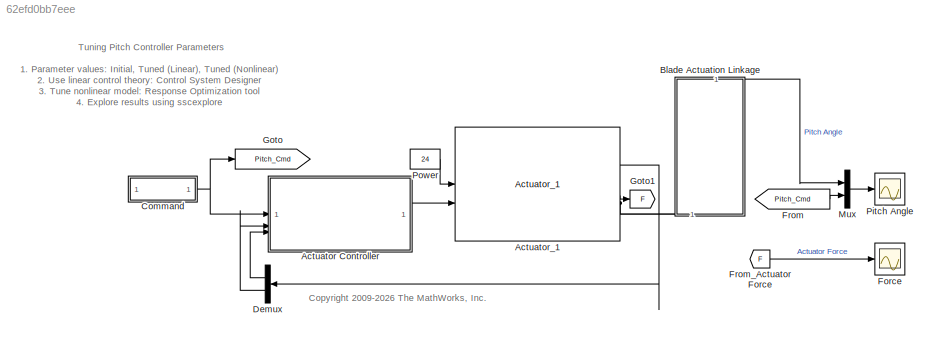
MODEL slx_62efd0bb7eee
KIND model
CONFIG EnableMultiTasking = on
CONFIG PostLoadFcn = %open_system([bdroot '/Start Values']);\nPitch_Control_Hydraulic_Testrig_setparam('Initial');\nwarning off Control:analysis:ScalingIssue\nwarning off Control:transformation:StateSpaceScaling\nwarning('off','MATLAB:HandleGraphics:ObsoletedProperty:JavaFrame')\nwarning('off','physmod:common:gl:sli:rtp:InvalidNonValueReference');
CONFIG SolverName = ode15s
CONFIG StopTime = 5.5
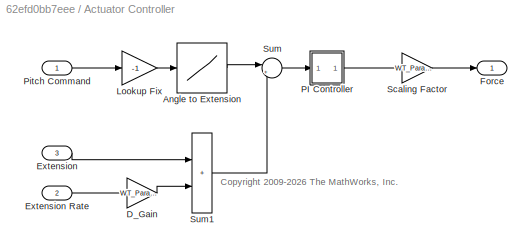
BLOCK [SubSystem] Actuator Controller
  AncestorBlock = Pitch_Controller_Lib/Inner Loop/Actuator Controller
  LibrarySourceBlock = Pitch_Controller_Lib/Inner Loop/Actuator Controller
BLOCK [Lookup] Actuator Controller/Angle to Extension
  InputValues = -Actuator_Lookup.angle
  SaturateOnIntegerOverflow = off
  Table = Actuator_Lookup.extension
BLOCK [Gain] Actuator Controller/D_Gain
  Gain = WT_Params.Pitch_Controller.D_Gain
BLOCK [Inport] Actuator Controller/Extension
  Port = 3
BLOCK [Inport] Actuator Controller/Extension Rate
  Port = 2
BLOCK [Outport] Actuator Controller/Force
  VectorParamsAs1DForOutWhenUnconnected = off
BLOCK [Gain] Actuator Controller/Lookup Fix
  Gain = -1
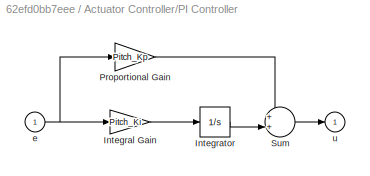
BLOCK [SubSystem] Actuator Controller/PI Controller
BLOCK [Gain] Actuator Controller/PI Controller/Integral Gain
  Gain = Pitch_Ki
  OutDataTypeStr = Inherit: Same as input
  ParamDataTypeStr = Inherit: Same as input
  SaturateOnIntegerOverflow = on
BLOCK [Integrator] Actuator Controller/PI Controller/Integrator
BLOCK [Gain] Actuator Controller/PI Controller/Proportional Gain
  Gain = Pitch_Kp
  OutDataTypeStr = Inherit: Same as input
  ParamDataTypeStr = Inherit: Same as input
  SaturateOnIntegerOverflow = on
BLOCK [Sum] Actuator Controller/PI Controller/Sum
  InputSameDT = on
  Inputs = ++|
  OutDataTypeStr = Inherit: Same as first input
  SaturateOnIntegerOverflow = on
BLOCK [Inport] Actuator Controller/PI Controller/e
BLOCK [Outport] Actuator Controller/PI Controller/u
  InitialOutput = 0
  VectorParamsAs1DForOutWhenUnconnected = off
BLOCK [Inport] Actuator Controller/Pitch Command
BLOCK [Gain] Actuator Controller/Scaling Factor
  Gain = WT_Params.Pitch_Actuator.hydraulic_actuator_scale_factor
BLOCK [Sum] Actuator Controller/Sum
  Inputs = |+-
BLOCK [Sum] Actuator Controller/Sum1
  IconShape = rectangular
BLOCK [Reference] Actuator_1  REF=Hydraulic_Actuator_Lib/Actuator_1
  SourceBlock = Hydraulic_Actuator_Lib/Actuator_1
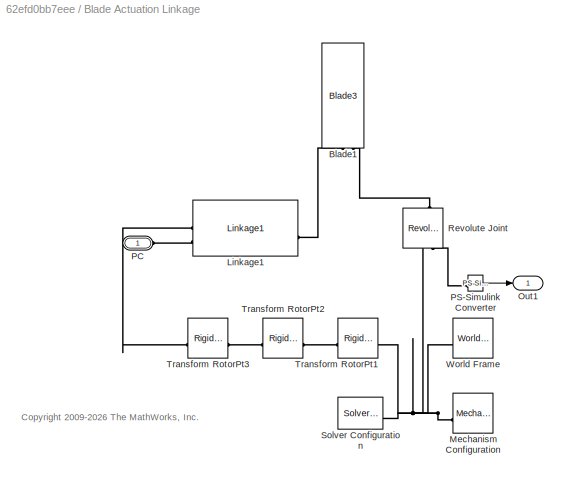
BLOCK [SubSystem] Blade Actuation Linkage
  NameLocation = right
BLOCK [Reference] Blade Actuation Linkage/Blade1  REF=Blades_Lib/Blades/Blade3
  NameLocation = right
  SourceBlock = Blades_Lib/Blades/Blade3
  SourceType = SubSystem
BLOCK [Reference] Blade Actuation Linkage/Linkage1  REF=Pitch_System_Lib/Hydraulic/Linkage1
  SourceBlock = Pitch_System_Lib/Hydraulic/Linkage1
BLOCK [Reference] Blade Actuation Linkage/Mechanism Configuration  REF=sm_lib/Utilities/Mechanism
Configuration
  SourceBlock = sm_lib/Utilities/Mechanism\nConfiguration
  SourceType = Mechanism\nConfiguration
BLOCK [Outport] Blade Actuation Linkage/Out1
  VectorParamsAs1DForOutWhenUnconnected = off
BLOCK [PMIOPort] Blade Actuation Linkage/PC
  Side = Left
BLOCK [Reference] Blade Actuation Linkage/PS-Simulink Converter  REF=nesl_utility/PS-Simulink
Converter
  SourceBlock = nesl_utility/PS-Simulink\nConverter
  SourceType = PS-Simulink\nConverter
BLOCK [Reference] Blade Actuation Linkage/Revolute Joint  REF=sm_lib/Joints/Revolute Joint
  NameLocation = right
  SourceBlock = sm_lib/Joints/Revolute Joint
  SourceType = Revolute Joint
BLOCK [Reference] Blade Actuation Linkage/Solver Configuration  REF=nesl_utility/Solver
Configuration
  SourceBlock = nesl_utility/Solver\nConfiguration
  SourceType = Solver\nConfiguration
BLOCK [Reference] Blade Actuation Linkage/Transform RotorPt1  REF=sm_lib/Frames and
Transforms/Rigid
Transform
  SourceBlock = sm_lib/Frames and\nTransforms/Rigid\nTransform
  SourceType = Rigid\nTransform
BLOCK [Reference] Blade Actuation Linkage/Transform RotorPt2  REF=sm_lib/Frames and
Transforms/Rigid
Transform
  SourceBlock = sm_lib/Frames and\nTransforms/Rigid\nTransform
  SourceType = Rigid\nTransform
BLOCK [Reference] Blade Actuation Linkage/Transform RotorPt3  REF=sm_lib/Frames and
Transforms/Rigid
Transform
  SourceBlock = sm_lib/Frames and\nTransforms/Rigid\nTransform
  SourceType = Rigid\nTransform
BLOCK [Reference] Blade Actuation Linkage/World Frame  REF=sm_lib/Frames and
Transforms/World Frame
  SourceBlock = sm_lib/Frames and\nTransforms/World Frame
  SourceType = World Frame
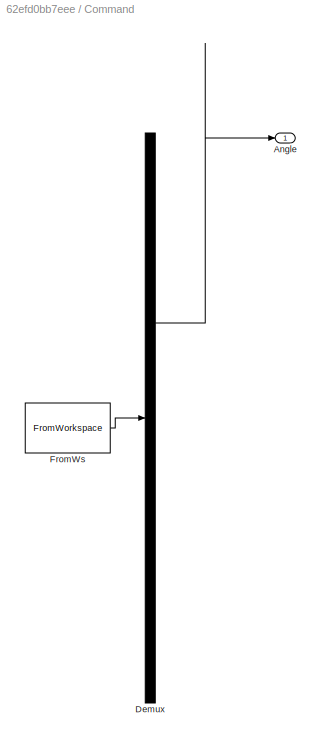
BLOCK [SubSystem] Command
  AncestorBlock = Turbine_Input_Lib/Commands/Signal Builder
  ClipboardFcn = sigbuilder_block('clipboard');
  CloseFcn = sigbuilder_block('close');
  ContinueFcn = sigbuilder_block('continue')
  CopyFcn = sigbuilder_block('copy');
  DeleteFcn = sigbuilder_block('delete');
  LibrarySourceBlock = Turbine_Input_Lib/Commands/Signal Builder
  LoadFcn = sigbuilder_block('load');
  MaskHideContents = on
  ModelCloseFcn = sigbuilder_block('modelClose');
  NameChangeFcn = sigbuilder_block('namechange');
  OpenFcn = sigbuilder_block('open',[214.8 226.8 550.2 360.6 ]);
  PauseFcn = sigbuilder_block('pause')
  PreSaveFcn = sigbuilder_block('preSave');
  StartFcn = sigbuilder_block('start');
  StopFcn = sigbuilder_block('stop');
  Tag = STV Subsys
BLOCK [Outport] Command/Angle
  Tag = STV Outport
  VectorParamsAs1DForOutWhenUnconnected = off
BLOCK [Demux] Command/Demux
  DisplayOption = none
  Outputs = 1
  Tag = STV Demux
BLOCK [FromWorkspace] Command/FromWs
  Tag = STV FromWs
  VariableName = tuvar
BLOCK [Demux] Demux
  NameLocation = top
  Outputs = 2
BLOCK [Scope] Force
  ActiveDisplayYMaximum = 9615.01423
  ActiveDisplayYMinimum = -7000.68211
  DataLogging = on
  DataLoggingDecimation = 1
  DataLoggingSaveFormat = Structure With Time
  DataLoggingVariableName = Pitch_Control_H_Force_DATA
  Floating = off
  GraphicalSettings = {"GraphicalSettings":{"LegacySettings":true,"Style":{"AxesScalingProperties":{"ScaleAxesLimitsAtStop":false},"Style":{"AxesColor":"[0 0 0]","ChannelNames":[""],"ColorOrder":"[1 0.909803921568627 0.392156862745098;0.149019607843137 0.549019607843137 0.866666666666667;0.96078431372549 0.466666666666667 0.16078431372549;0.286274509803922 0.858823529411765 0.250980392156863;0.752941176470588 0.3607843...<+488ch>
  MultipleDisplayCache = [{"MaxYLimMag":9615.01423,"MaxYLimReal":9615.01423,"MinYLimMag":0,"MinYLimReal":-7000.68211,"PlotAsMagnitudePhase":false,"ShowGrid":true,"ShowLegend":false,"Title":"%<SignalLabel>","YLabel":""}]
  NumInputPorts = 1
  WasSavedAsWebScope = on
BLOCK [From] From
  CloseFcn = tagdialog Close
  GotoTag = Pitch_Cmd
  NameLocation = top
BLOCK [From] From_Actuator Force
  CloseFcn = tagdialog Close
  GotoTag = F
BLOCK [Goto] Goto
  GotoTag = Pitch_Cmd
BLOCK [Goto] Goto1
  GotoTag = F
BLOCK [Mux] Mux
  DisplayOption = bar
  Inputs = 2
BLOCK [Scope] Pitch Angle
  ActiveDisplayYMaximum = 25
  ActiveDisplayYMinimum = -25
  DataLogging = on
  DataLoggingDecimation = 1
  DataLoggingSaveFormat = Structure With Time
  DataLoggingVariableName = Pitch_Control_H_Angle_DATA
  Floating = off
  GraphicalSettings = {"GraphicalSettings":{"LegacySettings":true,"Style":{"AxesScalingProperties":{"ScaleAxesLimitsAtStop":false},"Style":{"AxesColor":"[0 0 0]","ChannelNames":[""],"ColorOrder":"[1 0.909803921568627 0.392156862745098;0.149019607843137 0.549019607843137 0.866666666666667;0.96078431372549 0.466666666666667 0.16078431372549;0.286274509803922 0.858823529411765 0.250980392156863;0.752941176470588 0.3607843...<+596ch>
  MultipleDisplayCache = [{"MaxYLimMag":25,"MaxYLimReal":25,"MinYLimMag":0,"MinYLimReal":-25,"PlotAsMagnitudePhase":false,"ShowGrid":true,"ShowLegend":true,"Title":"%<SignalLabel>","YLabel":""}]
  NumInputPorts = 1
  ShowLegend = on
  WasSavedAsWebScope = on
BLOCK [Constant] Power
  NameLocation = top
  Value = 24
ANNOTATION (root): 1. Parameter values: Initial , Tuned (Linear) , Tuned (Nonlinear) 2. Use linear control theory: Control System Designer 3. Tune nonlinear model: Response Optimization tool 4. Explore results using sscexplore
ANNOTATION (root): <copyright redacted>
ANNOTATION (root): Tuning Pitch Controller Parameters
ANNOTATION Actuator Controller: <copyright redacted>
ANNOTATION Blade Actuation Linkage: <copyright redacted>
LINE Actuator Controller:1 -> Actuator_1:2
LINE Actuator_1:1 -> Demux:1
LINE Actuator_1:3 -> Goto1:1
LINE Blade Actuation Linkage/PS-Simulink Converter:1 -> Blade Actuation Linkage/Out1:1
LINE Blade Actuation Linkage:1 -> Mux:1
NET Command:1 -> Actuator Controller:1, Goto:1
LINE Demux:1 -> Actuator Controller:3
LINE Demux:2 -> Actuator Controller:2
LINE From:1 -> Mux:2
LINE From_Actuator Force:1 -> Force:1
LINE Mux:1 -> Pitch Angle:1
LINE Power:1 -> Actuator_1:1
PLINE Actuator_1:RConn1 -- Blade Actuation Linkage:LConn1
PLINE Blade Actuation Linkage/Blade1:LConn1 -- Blade Actuation Linkage/Linkage1:LConn1
PLINE Blade Actuation Linkage/Blade1:LConn2 -- Blade Actuation Linkage/Revolute Joint:LConn1
PLINE Blade Actuation Linkage/Linkage1:RConn1 -- Blade Actuation Linkage/Transform RotorPt3:RConn1
PLINE Blade Actuation Linkage/Linkage1:RConn2 -- Blade Actuation Linkage/PC:RConn1
PNET net1: Blade Actuation Linkage/Mechanism Configuration:RConn1 -- Blade Actuation Linkage/Revolute Joint:RConn1 -- Blade Actuation Linkage/Solver Configuration:RConn1 -- Blade Actuation Linkage/Transform RotorPt1:LConn1 -- Blade Actuation Linkage/World Frame:RConn1
PLINE Blade Actuation Linkage/PS-Simulink Converter:LConn1 -- Blade Actuation Linkage/Revolute Joint:RConn2
PLINE Blade Actuation Linkage/Transform RotorPt1:RConn1 -- Blade Actuation Linkage/Transform RotorPt2:LConn1
PLINE Blade Actuation Linkage/Transform RotorPt2:RConn1 -- Blade Actuation Linkage/Transform RotorPt3:LConn1
note: NET lines group one-source signal fan-out (src -> all destinations, sorted); 1:1 wires keep LINE; PNET lines group multi-terminal physical nets as a canonical sorted terminal list (undirected conserving connections); 2-terminal nets keep the pairwise PLINE form
